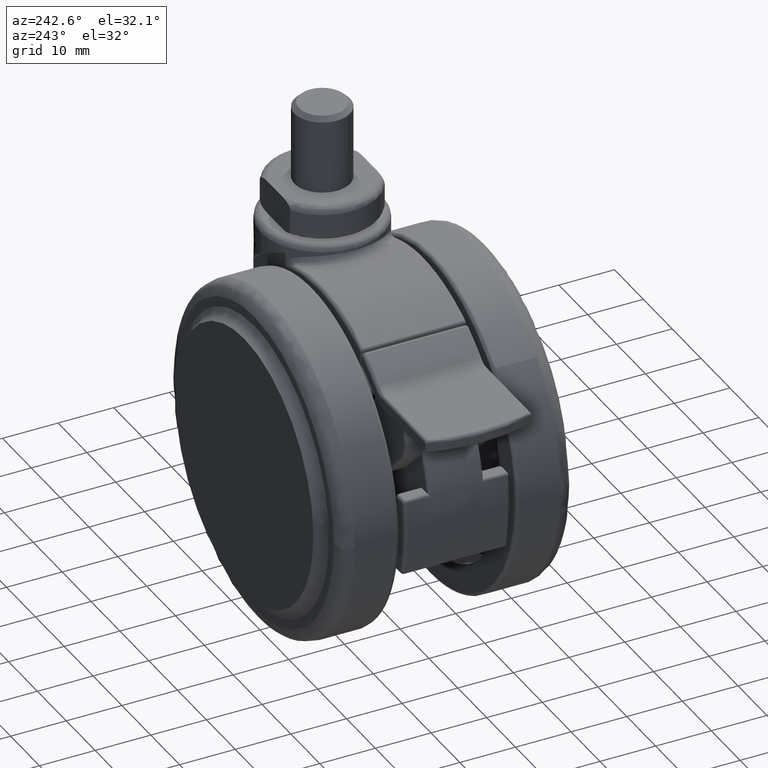
[diagram: clean part render]
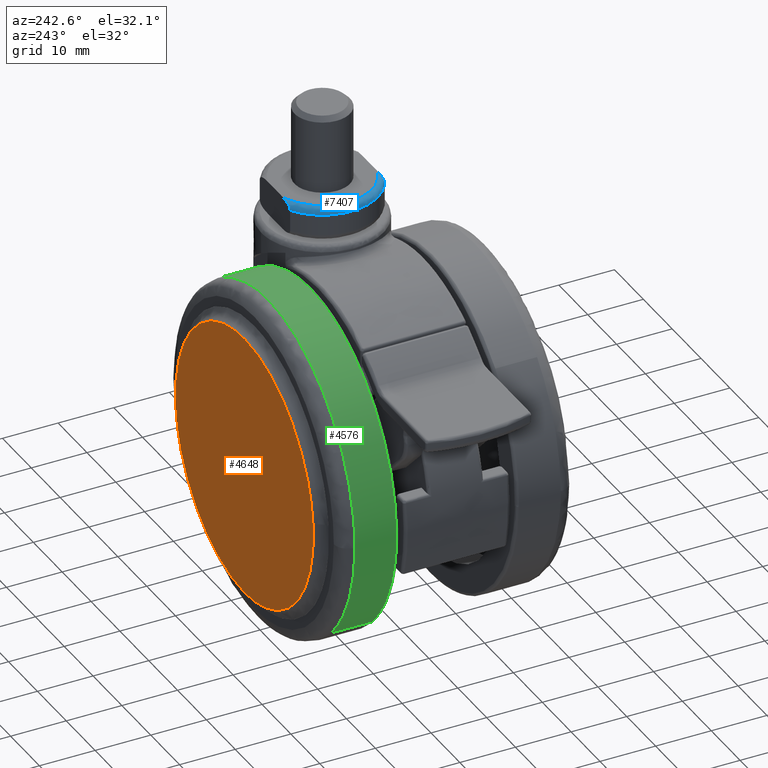
[diagram: same view with three faces highlighted in distinct colors, each labeled with its STEP entity id]
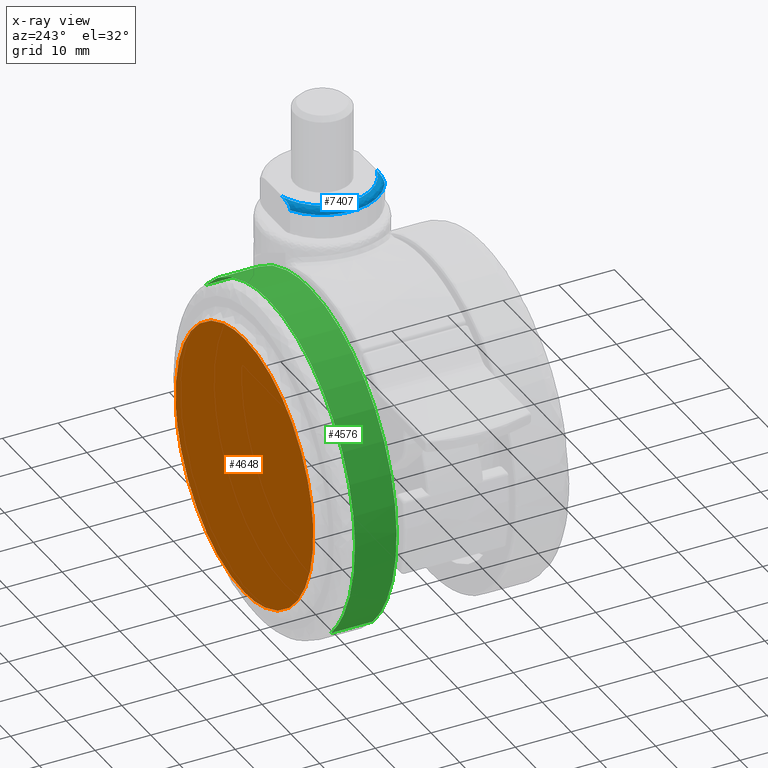
[diagram: x-ray of the same camera — body ghosted, the three highlighted faces saturated]
A machine part, auxiliary view with three faces highlighted in distinct colors.
The next image is the same camera in x-ray (body ghosted, the three faces saturated) — at least one of them is partly hidden behind the body in this view.
Their STEP definitions:

[orange] entity #4648 — the highlighted face is a freeform B-spline surface patch.
#4577=CARTESIAN_POINT('',(26.253983298255239,22.800000000000001,-26.260700038385689));
#4578=CARTESIAN_POINT('',(26.253983298255239,22.800000000000001,26.260701319169161));
#4579=CARTESIAN_POINT('',(-26.253983725177669,22.800000000000001,-26.260700038385689));
#4580=CARTESIAN_POINT('',(-26.253983725177669,22.800000000000001,26.260701319169161));
#4581=B_SPLINE_SURFACE_WITH_KNOTS('',1,1,((#4577,#4579),(#4578,#4580)),.UNSPECIFIED.,.F.,.F.,.U.,(2,2),(2,2),(0.0,52.521401357554851),(0.0,52.507967023432911),.UNSPECIFIED.);
#4582=CARTESIAN_POINT('',(23.783222111210389,22.799999999489390,-2.097494252924088));
#4583=VERTEX_POINT('',#4582);
#4584=CARTESIAN_POINT('',(2.792102E-015,22.800000000000001,23.875534258511259));
#4585=VERTEX_POINT('',#4584);
#4586=CARTESIAN_POINT('',(23.783222111210392,22.799999999489387,-2.097494252924089));
#4587=CARTESIAN_POINT('',(23.875534258569957,22.799999999499676,-1.050778486631238));
#4588=CARTESIAN_POINT('',(23.875534258568639,22.799999999510920,-5.057056E-012));
#4589=CARTESIAN_POINT('',(23.875534258538682,22.799999999766211,23.875534258508829));
#4590=CARTESIAN_POINT('',(2.792102E-015,22.800000000000001,23.875534258511259));
#4598=(BOUNDED_CURVE()B_SPLINE_CURVE(2,(#4586,#4587,#4588,#4589,#4590),.UNSPECIFIED.,.F.,.U.)B_SPLINE_CURVE_WITH_KNOTS((3,2,3),(0.734718454855897,0.750000000000000,1.0),.UNSPECIFIED.)CURVE()GEOMETRIC_REPRESENTATION_ITEM()RATIONAL_B_SPLINE_CURVE((0.966381850709618,0.982096556217202,1.0,0.707106781186547,1.0))REPRESENTATION_ITEM(''));
#4599=EDGE_CURVE('',#4583,#4585,#4598,.T.);
#4600=ORIENTED_EDGE('',*,*,#4599,.F.);
#4601=CARTESIAN_POINT('',(2.792102E-015,22.800000000000001,-23.875534258511252));
#4602=VERTEX_POINT('',#4601);
#4603=CARTESIAN_POINT('',(2.792102E-015,22.800000000000001,-23.875534258511252));
#4604=CARTESIAN_POINT('',(21.862569243453571,22.799999999744692,-23.875534258513881));
#4605=CARTESIAN_POINT('',(23.783222111210392,22.799999999489387,-2.097494252924089));
#4613=(BOUNDED_CURVE()B_SPLINE_CURVE(2,(#4603,#4604,#4605),.UNSPECIFIED.,.F.,.U.)B_SPLINE_CURVE_WITH_KNOTS((3,3),(0.500000000000000,0.734718454855897),.UNSPECIFIED.)CURVE()GEOMETRIC_REPRESENTATION_ITEM()RATIONAL_B_SPLINE_CURVE((1.0,0.725010224969346,0.966381850709618))REPRESENTATION_ITEM(''));
#4614=EDGE_CURVE('',#4602,#4583,#4613,.T.);
#4615=ORIENTED_EDGE('',*,*,#4614,.F.);
#4616=CARTESIAN_POINT('',(-23.783222111210382,22.799999999489401,2.097494252924087));
#4617=VERTEX_POINT('',#4616);
#4618=CARTESIAN_POINT('',(-23.783222111210382,22.799999999489398,2.097494252924088));
#4619=CARTESIAN_POINT('',(-23.875534258569946,22.799999999499686,1.050778486631239));
#4620=CARTESIAN_POINT('',(-23.875534258568631,22.799999999510920,5.060183E-012));
#4621=CARTESIAN_POINT('',(-23.875534258538682,22.799999999766225,-23.875534258508829));
#4622=CARTESIAN_POINT('',(2.792102E-015,22.800000000000001,-23.875534258511252));
#4630=(BOUNDED_CURVE()B_SPLINE_CURVE(2,(#4618,#4619,#4620,#4621,#4622),.UNSPECIFIED.,.F.,.U.)B_SPLINE_CURVE_WITH_KNOTS((3,2,3),(0.234718454855897,0.250000000000000,0.500000000000000),.UNSPECIFIED.)CURVE()GEOMETRIC_REPRESENTATION_ITEM()RATIONAL_B_SPLINE_CURVE((0.966381850709618,0.982096556217202,1.0,0.707106781186547,1.0))REPRESENTATION_ITEM(''));
#4631=EDGE_CURVE('',#4617,#4602,#4630,.T.);
#4632=ORIENTED_EDGE('',*,*,#4631,.F.);
#4633=CARTESIAN_POINT('',(2.792102E-015,22.800000000000001,23.875534258511259));
#4634=CARTESIAN_POINT('',(-21.862569243453560,22.799999999744696,23.875534258513884));
#4635=CARTESIAN_POINT('',(-23.783222111210382,22.799999999489398,2.097494252924088));
#4643=(BOUNDED_CURVE()B_SPLINE_CURVE(2,(#4633,#4634,#4635),.UNSPECIFIED.,.F.,.U.)B_SPLINE_CURVE_WITH_KNOTS((3,3),(0.0,0.234718454855897),.UNSPECIFIED.)CURVE()GEOMETRIC_REPRESENTATION_ITEM()RATIONAL_B_SPLINE_CURVE((1.0,0.725010224969346,0.966381850709618))REPRESENTATION_ITEM(''));
#4644=EDGE_CURVE('',#4585,#4617,#4643,.T.);
#4645=ORIENTED_EDGE('',*,*,#4644,.F.);
#4646=EDGE_LOOP('',(#4600,#4615,#4632,#4645));
#4647=FACE_OUTER_BOUND('',#4646,.T.);
#4648=ADVANCED_FACE('',(#4647),#4581,.F.);

[blue] entity #7407 — the highlighted face is a freeform B-spline surface patch.
#6953=CARTESIAN_POINT('',(11.732173123573560,8.500000000000000,37.400000000000013));
#6954=VERTEX_POINT('',#6953);
#6960=CARTESIAN_POINT('',(14.361818808345360,8.500000000000000,38.500000000000000));
#6961=VERTEX_POINT('',#6960);
#6962=CARTESIAN_POINT('',(14.361818808345360,8.500000000000000,38.500000000000000));
#6963=CARTESIAN_POINT('',(14.180705627136900,8.500000000000002,38.499999999985732));
#6964=CARTESIAN_POINT('',(13.999987454202630,8.499999999999998,38.496117348309532));
#6965=CARTESIAN_POINT('',(13.639834943331460,8.499999999999998,38.475732855913378));
#6966=CARTESIAN_POINT('',(13.460394029185711,8.500000000000000,38.459295654670299));
#6967=CARTESIAN_POINT('',(13.103486130387770,8.500000000000000,38.407018922843072));
#6968=CARTESIAN_POINT('',(12.925994609388191,8.500000000000000,38.371420567181502));
#6969=CARTESIAN_POINT('',(12.706162219471310,8.499999999999998,38.306949389908780));
#6970=CARTESIAN_POINT('',(12.662300186823289,8.500000000000000,38.293028530757077));
#6971=CARTESIAN_POINT('',(12.574822115581229,8.499999999999998,38.262768865071493));
#6972=CARTESIAN_POINT('',(12.531332009502091,8.499999999999998,38.246465471662127));
#6973=CARTESIAN_POINT('',(12.402925031862351,8.499999999999995,38.193956335203609));
#6974=CARTESIAN_POINT('',(12.319601713528080,8.499999999999996,38.154088392751078));
#6975=CARTESIAN_POINT('',(12.199376864950301,8.499999999999998,38.084141955876433));
#6976=CARTESIAN_POINT('',(12.160148380140949,8.499999999999998,38.059117707352982));
#6977=CARTESIAN_POINT('',(12.084946254120700,8.500000000000000,38.005860821964063));
#6978=CARTESIAN_POINT('',(12.048813441161769,8.499999999999998,37.977545807658082));
#6979=CARTESIAN_POINT('',(11.980056287637719,8.500000000000000,37.916885614065521));
#6980=CARTESIAN_POINT('',(11.947424541836250,8.499999999999998,37.884548941137453));
#6981=CARTESIAN_POINT('',(11.886564120158461,8.499999999999998,37.814817810516992));
#6982=CARTESIAN_POINT('',(11.858234525279780,8.499999999999998,37.777160591513884));
#6983=CARTESIAN_POINT('',(11.809296620395759,8.499999999999998,37.698384118300943));
#6984=CARTESIAN_POINT('',(11.788401054494530,8.500000000000000,37.657015034713403));
#6985=CARTESIAN_POINT('',(11.755366870145350,8.499999999999998,37.569422600380683));
#6986=CARTESIAN_POINT('',(11.743750110243351,8.499999999999998,37.524380629105188));
#6987=CARTESIAN_POINT('',(11.734413445527780,8.499999999999998,37.455865874881923));
#6988=CARTESIAN_POINT('',(11.732633876299451,8.499999999999998,37.432816167630463));
#6989=CARTESIAN_POINT('',(11.732198205700850,8.500000000000000,37.406368663249062));
#6990=CARTESIAN_POINT('',(11.732172444164240,8.500000000000000,37.403186374478082));
#6991=CARTESIAN_POINT('',(11.732173123573560,8.500000000000000,37.400000000000013));
#6992=B_SPLINE_CURVE_WITH_KNOTS('',3,(#6962,#6963,#6964,#6965,#6966,#6967,#6968,#6969,#6970,#6971,#6972,#6973,#6974,#6975,#6976,#6977,#6978,#6979,#6980,#6981,#6982,#6983,#6984,#6985,#6986,#6987,#6988,#6989,#6990,#6991),.UNSPECIFIED.,.F.,.U.,(4,2,2,2,2,2,2,2,2,2,2,2,2,2,4),(0.0,0.031250000000000,0.062500000000000,0.093750000000001,0.101562500000001,0.109375000000002,0.125000000000002,0.132812500000002,0.140625000000002,0.148437500000002,0.156250000000002,0.164062500000002,0.171875000000002,0.175781250000002,0.176314407642924),.UNSPECIFIED.);
#6993=EDGE_CURVE('',#6961,#6954,#6992,.T.);
#7171=CARTESIAN_POINT('',(14.361818808345721,-8.500000000000000,38.500000000000000));
#7172=VERTEX_POINT('',#7171);
#7178=CARTESIAN_POINT('',(11.732173123573560,-8.500000000000000,37.400000000000013));
#7179=VERTEX_POINT('',#7178);
#7180=CARTESIAN_POINT('',(11.732173123573560,-8.500000000000000,37.400000000000013));
#7181=CARTESIAN_POINT('',(11.732172488270839,-8.500000000000000,37.410532627479583));
#7182=CARTESIAN_POINT('',(11.732456352009690,-8.500000000000000,37.421051208579513));
#7183=CARTESIAN_POINT('',(11.735560858004391,-8.500000000000000,37.478146581404921));
#7184=CARTESIAN_POINT('',(11.743663911183299,-8.500000000000000,37.523953647868623));
#7185=CARTESIAN_POINT('',(11.763655289263230,-8.499999999999996,37.591468994513669));
#7186=CARTESIAN_POINT('',(11.771641910389411,-8.500000000000000,37.613746975414962));
#7187=CARTESIAN_POINT('',(11.789718039978011,-8.500000000000002,37.656933432088593));
#7188=CARTESIAN_POINT('',(11.799843767352931,-8.500000000000000,37.677977107869587));
#7189=CARTESIAN_POINT('',(11.833193779549809,-8.500000000000000,37.739606082652337));
#7190=CARTESIAN_POINT('',(11.859628387749940,-8.500000000000000,37.778963178361167));
#7191=CARTESIAN_POINT('',(11.917574268768210,-8.499999999999998,37.852151114619573));
#7192=CARTESIAN_POINT('',(11.949144893356570,-8.500000000000000,37.886212133546962));
#7193=CARTESIAN_POINT('',(12.016454562965150,-8.499999999999998,37.950269628954082));
#7194=CARTESIAN_POINT('',(12.052271649254850,-8.500000000000000,37.980310022340149));
#7195=CARTESIAN_POINT('',(12.127155473101739,-8.499999999999998,38.036717624212251));
#7196=CARTESIAN_POINT('',(12.165745790160910,-8.500000000000000,38.062742935964451));
#7197=CARTESIAN_POINT('',(12.284284924468800,-8.500000000000002,38.135567713053263));
#7198=CARTESIAN_POINT('',(12.366969295327090,-8.500000000000000,38.177177917418319));
#7199=CARTESIAN_POINT('',(12.537613721165521,-8.500000000000000,38.250390515804149));
#7200=CARTESIAN_POINT('',(12.625868207513630,-8.500000000000002,38.281983120571446));
#7201=CARTESIAN_POINT('',(12.891775912654140,-8.500000000000000,38.363515575781761));
#7202=CARTESIAN_POINT('',(13.072249236348069,-8.499999999999998,38.401310932275237));
#7203=CARTESIAN_POINT('',(13.345865888095091,-8.500000000000000,38.442969462979804));
#7204=CARTESIAN_POINT('',(13.437572104229771,-8.500000000000000,38.454265986397438));
#7205=CARTESIAN_POINT('',(13.621793778241130,-8.500000000000004,38.472673293497436));
#7206=CARTESIAN_POINT('',(13.714421266207230,-8.500000000000000,38.479784587442602));
#7207=CARTESIAN_POINT('',(13.991996857293120,-8.500000000000000,38.495971545967421));
#7208=CARTESIAN_POINT('',(14.176939827584400,-8.500000000000000,38.499999999981547));
#7209=CARTESIAN_POINT('',(14.361818808345721,-8.500000000000000,38.500000000000000));
#7210=B_SPLINE_CURVE_WITH_KNOTS('',3,(#7180,#7181,#7182,#7183,#7184,#7185,#7186,#7187,#7188,#7189,#7190,#7191,#7192,#7193,#7194,#7195,#7196,#7197,#7198,#7199,#7200,#7201,#7202,#7203,#7204,#7205,#7206,#7207,#7208,#7209),.UNSPECIFIED.,.F.,.U.,(4,2,2,2,2,2,2,2,2,2,2,2,2,2,4),(0.826376939406648,0.828124999999982,0.835937499999982,0.839843749999982,0.843749999999982,0.851562499999983,0.859374999999984,0.867187499999985,0.874999999999986,0.890624999999988,0.906249999999989,0.937499999999993,0.953124999999995,0.968749999999996,1.0),.UNSPECIFIED.);
#7211=EDGE_CURVE('',#7179,#7172,#7210,.T.);
#7283=CARTESIAN_POINT('',(14.361818808345721,-8.500000000000000,38.500000000000000));
#7284=CARTESIAN_POINT('',(13.715287075608311,-8.299460922832015,38.500000000000028));
#7285=CARTESIAN_POINT('',(12.495486659631361,-7.761783866358752,38.499999999999957));
#7286=CARTESIAN_POINT('',(11.068749699742160,-6.703442541975331,38.500000000000149));
#7287=CARTESIAN_POINT('',(10.084129950972420,-5.644237719278022,38.499999999999773));
#7288=CARTESIAN_POINT('',(9.369576332901884,-4.632879768659025,38.499999999999993));
#7289=CARTESIAN_POINT('',(8.782255705400885,-3.507911374300521,38.500000000000263));
#7290=CARTESIAN_POINT('',(8.259921122948404,-1.970331973588849,38.500000000000618));
#7291=CARTESIAN_POINT('',(8.057914722114941,-0.412486030270529,38.499999999998487));
#7292=CARTESIAN_POINT('',(8.136871512933954,1.030511011006077,38.499999999999993));
#7293=CARTESIAN_POINT('',(8.356781827855771,2.249126901079268,38.500000000001300));
#7294=CARTESIAN_POINT('',(8.731140593302534,3.369700863546100,38.499999999996753));
#7295=CARTESIAN_POINT('',(9.282229295433719,4.478235882799178,38.500000000004313));
#7296=CARTESIAN_POINT('',(10.064471508979899,5.658730960454690,38.499999999996703));
#7297=CARTESIAN_POINT('',(11.053154176184540,6.680647604364148,38.500000000001229));
#7298=CARTESIAN_POINT('',(12.526321574908851,7.762108241382680,38.499999999999673));
#7299=CARTESIAN_POINT('',(13.574632282475131,8.256044428192826,38.500000000000533));
#7300=CARTESIAN_POINT('',(14.361818808345360,8.500000000000000,38.500000000000000));
#7301=B_SPLINE_CURVE_WITH_KNOTS('',3,(#7283,#7284,#7285,#7286,#7287,#7288,#7289,#7290,#7291,#7292,#7293,#7294,#7295,#7296,#7297,#7298,#7299,#7300),.UNSPECIFIED.,.F.,.U.,(4,1,1,1,1,1,1,1,1,1,1,1,1,1,1,4),(0.000000123495532,2.030736821722449,3.973250387094815,5.297675313116248,6.357213347587294,7.681651169808898,9.094362491386947,11.213439338599059,12.361197991742930,13.420771883745690,14.921774873230820,15.893018215774520,17.129149206461850,19.159924490909130,20.131195404345501,22.603409302364732),.UNSPECIFIED.);
#7302=EDGE_CURVE('',#7172,#6961,#7301,.T.);
#7361=CARTESIAN_POINT('',(15.412378667501345,-8.679293734191454,38.497322931977415));
#7362=CARTESIAN_POINT('',(8.176696694560462,-7.355738683834930,38.497322931977429));
#7363=CARTESIAN_POINT('',(8.176696694560462,2.896196E-014,38.497322931977415));
#7364=CARTESIAN_POINT('',(8.176696694560459,7.355738531814065,38.497322931977408));
#7365=CARTESIAN_POINT('',(15.412378491054209,8.679293701915695,38.497322931977401));
#7366=CARTESIAN_POINT('',(15.185342771355709,-9.920465788583126,38.585513269115161));
#7367=CARTESIAN_POINT('',(6.914930723097648,-8.407637325981096,38.585513269115161));
#7368=CARTESIAN_POINT('',(6.914930723097646,2.903922E-014,38.585513269115154));
#7369=CARTESIAN_POINT('',(6.914930723097642,8.407637152220660,38.585513269115140));
#7370=CARTESIAN_POINT('',(15.185342569675953,9.920465751691806,38.585513269115147));
#7371=CARTESIAN_POINT('',(15.201126256860990,-9.834179780675898,37.323714351406515));
#7372=CARTESIAN_POINT('',(7.002648415584750,-8.334509564013946,37.323714351406508));
#7373=CARTESIAN_POINT('',(7.002648415584750,2.903385E-014,37.323714351406522));
#7374=CARTESIAN_POINT('',(7.002648415584747,8.334509391764843,37.323714351406508));
#7375=CARTESIAN_POINT('',(15.201126056935404,9.834179744105450,37.323714351406522));
#7383=(BOUNDED_SURFACE()B_SPLINE_SURFACE(2,2,((#7361,#7366,#7371),(#7362,#7367,#7372),(#7363,#7368,#7373),(#7364,#7369,#7374),(#7365,#7370,#7375)),.UNSPECIFIED.,.F.,.F.,.U.)B_SPLINE_SURFACE_WITH_KNOTS((3,2,3),(3,3),(0.0,14.482072543577450,28.964144860042630),(0.0,2.004607489314867),.UNSPECIFIED.)GEOMETRIC_REPRESENTATION_ITEM()RATIONAL_B_SPLINE_SURFACE(((0.891854389571714,0.586884576172750,0.896821997250981),(0.693408625558521,0.456297386752638,0.697270895065148),(0.913811094967896,0.601333181114613,0.918901000972554),(0.693408629014940,0.456297389027133,0.697270898540819),(0.891854383347541,0.586884572076934,0.896821990992139)))REPRESENTATION_ITEM('')SURFACE());
#7384=ORIENTED_EDGE('',*,*,#7302,.T.);
#7385=ORIENTED_EDGE('',*,*,#6993,.T.);
#7386=CARTESIAN_POINT('',(11.732173123573560,-8.500000000000000,37.400000000000013));
#7387=CARTESIAN_POINT('',(11.169903116212749,-8.151620594801800,37.399999999999878));
#7388=CARTESIAN_POINT('',(10.093758224199121,-7.326581359824849,37.400000000000183));
#7389=CARTESIAN_POINT('',(8.839094798048851,-5.879685566922861,37.399999999999977));
#7390=CARTESIAN_POINT('',(7.876266501462796,-4.228230049715981,37.400000000000027));
#7391=CARTESIAN_POINT('',(7.345343497896561,-2.752094588197134,37.400000000000013));
#7392=CARTESIAN_POINT('',(7.053587927980826,-1.270439996420073,37.400000000000013));
#7393=CARTESIAN_POINT('',(6.958747507916602,0.132595860984629,37.399999999999871));
#7394=CARTESIAN_POINT('',(7.118396637109009,1.877621287959161,37.400000000000638));
#7395=CARTESIAN_POINT('',(7.585271938759211,3.514691609679263,37.399999999999388));
#7396=CARTESIAN_POINT('',(8.240750017252058,4.876737552067809,37.399999999998727));
#7397=CARTESIAN_POINT('',(9.043326909596722,6.124922228377542,37.400000000002230));
#7398=CARTESIAN_POINT('',(10.155716085678870,7.377281531098438,37.399999999998791));
#7399=CARTESIAN_POINT('',(11.192396783449951,8.165553078359222,37.400000000000247));
#7400=CARTESIAN_POINT('',(11.732173123573560,8.500000000000000,37.400000000000013));
#7401=B_SPLINE_CURVE_WITH_KNOTS('',3,(#7386,#7387,#7388,#7389,#7390,#7391,#7392,#7393,#7394,#7395,#7396,#7397,#7398,#7399,#7400),.UNSPECIFIED.,.F.,.U.,(4,1,1,1,1,1,1,1,1,1,1,1,4),(0.000000102846510,1.984347365809363,4.048067634621859,5.714937997953255,7.699307923827629,8.731156478660621,10.239214342568870,11.906078152065360,13.969833119093430,15.319194843351861,16.430439936848579,18.414788165063140,20.319759216062231),.UNSPECIFIED.);
#7402=EDGE_CURVE('',#7179,#6954,#7401,.T.);
#7403=ORIENTED_EDGE('',*,*,#7402,.F.);
#7404=ORIENTED_EDGE('',*,*,#7211,.T.);
#7405=EDGE_LOOP('',(#7384,#7385,#7403,#7404));
#7406=FACE_OUTER_BOUND('',#7405,.T.);
#7407=ADVANCED_FACE('',(#7406),#7383,.T.);

[green] entity #4576 — the highlighted face is a freeform B-spline surface patch.
#4267=CARTESIAN_POINT('',(-29.990525678498560,10.999999999857030,0.753902863317289));
#4268=VERTEX_POINT('',#4267);
#4282=CARTESIAN_POINT('',(-21.761231919898879,10.999999999927139,-20.650636438821259));
#4283=VERTEX_POINT('',#4282);
#4284=CARTESIAN_POINT('',(-29.990525678498564,10.999999999857028,0.753902863317289));
#4285=CARTESIAN_POINT('',(-29.999999999999996,10.999999999857911,0.377010963709972));
#4286=CARTESIAN_POINT('',(-30.0,10.999999999858810,-2.631466E-015));
#4287=CARTESIAN_POINT('',(-29.999999999999996,10.999999999887326,-11.968785714438784));
#4288=CARTESIAN_POINT('',(-21.761231919898893,10.999999999927157,-20.650636438821273));
#4296=(BOUNDED_CURVE()B_SPLINE_CURVE(2,(#4284,#4285,#4286,#4287,#4288),.UNSPECIFIED.,.F.,.U.)B_SPLINE_CURVE_WITH_KNOTS((3,2,3),(0.245579891769707,0.250000000000000,0.371049520889213),.UNSPECIFIED.)CURVE()GEOMETRIC_REPRESENTATION_ITEM()RATIONAL_B_SPLINE_CURVE((0.989826157681350,0.994821521091703,1.0,0.858181664763729,0.853699661796709))REPRESENTATION_ITEM(''));
#4297=EDGE_CURVE('',#4268,#4283,#4296,.T.);
#4378=CARTESIAN_POINT('',(21.761231919898879,10.999999999927130,20.650636438821259));
#4379=VERTEX_POINT('',#4378);
#4395=CARTESIAN_POINT('',(1.347067E-015,11.0,30.0));
#4396=VERTEX_POINT('',#4395);
#4397=CARTESIAN_POINT('',(21.761231919898893,10.999999999927150,20.650636438821273));
#4398=CARTESIAN_POINT('',(12.889017858354073,10.999999999970047,30.000000000000004));
#4399=CARTESIAN_POINT('',(1.347067E-015,11.0,30.0));
#4407=(BOUNDED_CURVE()B_SPLINE_CURVE(2,(#4397,#4398,#4399),.UNSPECIFIED.,.F.,.U.)B_SPLINE_CURVE_WITH_KNOTS((3,3),(0.871049520889213,1.0),.UNSPECIFIED.)CURVE()GEOMETRIC_REPRESENTATION_ITEM()RATIONAL_B_SPLINE_CURVE((0.853699661796709,0.848925116422819,1.0))REPRESENTATION_ITEM(''));
#4408=EDGE_CURVE('',#4379,#4396,#4407,.T.);
#4410=CARTESIAN_POINT('',(1.347067E-015,11.0,30.0));
#4411=CARTESIAN_POINT('',(-29.255336285402727,10.999999999928518,30.0));
#4412=CARTESIAN_POINT('',(-29.990525678498564,10.999999999857028,0.753902863317289));
#4420=(BOUNDED_CURVE()B_SPLINE_CURVE(2,(#4410,#4411,#4412),.UNSPECIFIED.,.F.,.U.)B_SPLINE_CURVE_WITH_KNOTS((3,3),(0.0,0.245579891769707),.UNSPECIFIED.)CURVE()GEOMETRIC_REPRESENTATION_ITEM()RATIONAL_B_SPLINE_CURVE((1.0,0.712285260094844,0.989826157681350))REPRESENTATION_ITEM(''));
#4421=EDGE_CURVE('',#4396,#4268,#4420,.T.);
#4446=CARTESIAN_POINT('',(-21.761231910157260,18.500000000139579,-20.650636449086779));
#4447=VERTEX_POINT('',#4446);
#4448=CARTESIAN_POINT('',(-21.761231910157260,18.500000000139579,-20.650636449086779));
#4449=CARTESIAN_POINT('',(-21.761231919898879,10.999999999927139,-20.650636438821259));
#4450=QUASI_UNIFORM_CURVE('',1,(#4448,#4449),.UNSPECIFIED.,.F.,.U.);
#4451=EDGE_CURVE('',#4447,#4283,#4450,.T.);
#4483=CARTESIAN_POINT('',(21.761231910157271,18.500000000139561,20.650636449086779));
#4484=VERTEX_POINT('',#4483);
#4498=CARTESIAN_POINT('',(21.761231910157271,18.500000000139561,20.650636449086779));
#4499=CARTESIAN_POINT('',(21.761231919898879,10.999999999927130,20.650636438821259));
#4500=QUASI_UNIFORM_CURVE('',1,(#4498,#4499),.UNSPECIFIED.,.F.,.U.);
#4501=EDGE_CURVE('',#4484,#4379,#4500,.T.);
#4508=CARTESIAN_POINT('',(21.761231130368628,18.687500000279481,20.650637270812609));
#4509=CARTESIAN_POINT('',(1.110593859556011,18.687500000279481,42.411868401181231));
#4510=CARTESIAN_POINT('',(-20.650637270812609,18.687500000279488,21.761231130368621));
#4511=CARTESIAN_POINT('',(-42.411868401181231,18.687500000279492,1.110593859556008));
#4512=CARTESIAN_POINT('',(-21.761231130368621,18.687500000279488,-20.650637270812609));
#4513=CARTESIAN_POINT('',(21.761231130368621,10.807812499846460,20.650637270812609));
#4514=CARTESIAN_POINT('',(1.110593859556010,10.807812499846467,42.411868401181231));
#4515=CARTESIAN_POINT('',(-20.650637270812609,10.807812499846470,21.761231130368621));
#4516=CARTESIAN_POINT('',(-42.411868401181231,10.807812499846472,1.110593859556008));
#4517=CARTESIAN_POINT('',(-21.761231130368621,10.807812499846470,-20.650637270812609));
#4525=(BOUNDED_SURFACE()B_SPLINE_SURFACE(2,1,((#4508,#4513),(#4509,#4514),(#4510,#4515),(#4511,#4516),(#4512,#4517)),.UNSPECIFIED.,.F.,.F.,.U.)B_SPLINE_SURFACE_WITH_KNOTS((3,2,3),(2,2),(0.0,49.705627484771391,99.411254969542782),(0.0,7.879687500433019),.UNSPECIFIED.)GEOMETRIC_REPRESENTATION_ITEM()RATIONAL_B_SPLINE_SURFACE(((1.0,1.0),(0.707106781186548,0.707106781186548),(1.0,1.0),(0.707106781186548,0.707106781186548),(1.0,1.0)))REPRESENTATION_ITEM('')SURFACE());
#4526=ORIENTED_EDGE('',*,*,#4297,.F.);
#4527=ORIENTED_EDGE('',*,*,#4421,.F.);
#4528=ORIENTED_EDGE('',*,*,#4408,.F.);
#4529=ORIENTED_EDGE('',*,*,#4501,.F.);
#4530=CARTESIAN_POINT('',(2.265522E-015,18.500000000000000,30.0));
#4531=VERTEX_POINT('',#4530);
#4532=CARTESIAN_POINT('',(21.761231910157274,18.500000000139565,20.650636449086807));
#4533=CARTESIAN_POINT('',(12.889017849971918,18.500000000057828,30.0));
#4534=CARTESIAN_POINT('',(2.265522E-015,18.500000000000000,30.0));
#4542=(BOUNDED_CURVE()B_SPLINE_CURVE(2,(#4532,#4533,#4534),.UNSPECIFIED.,.F.,.U.)B_SPLINE_CURVE_WITH_KNOTS((3,3),(0.871049520960404,1.0),.UNSPECIFIED.)CURVE()GEOMETRIC_REPRESENTATION_ITEM()RATIONAL_B_SPLINE_CURVE((0.853699661791437,0.848925116506225,1.0))REPRESENTATION_ITEM(''));
#4543=EDGE_CURVE('',#4484,#4531,#4542,.T.);
#4544=ORIENTED_EDGE('',*,*,#4543,.T.);
#4545=CARTESIAN_POINT('',(-29.999999999999989,18.500000000269189,5.284502E-015));
#4546=VERTEX_POINT('',#4545);
#4547=CARTESIAN_POINT('',(2.265522E-015,18.500000000000000,30.0));
#4548=CARTESIAN_POINT('',(-29.999999999999993,18.500000000134595,29.999999999999993));
#4549=CARTESIAN_POINT('',(-29.999999999999989,18.500000000269189,5.284502E-015));
#4557=(BOUNDED_CURVE()B_SPLINE_CURVE(2,(#4547,#4548,#4549),.UNSPECIFIED.,.F.,.U.)B_SPLINE_CURVE_WITH_KNOTS((3,3),(0.0,0.250000000000000),.UNSPECIFIED.)CURVE()GEOMETRIC_REPRESENTATION_ITEM()RATIONAL_B_SPLINE_CURVE((1.0,0.707106781186547,1.0))REPRESENTATION_ITEM(''));
#4558=EDGE_CURVE('',#4531,#4546,#4557,.T.);
#4559=ORIENTED_EDGE('',*,*,#4558,.T.);
#4560=CARTESIAN_POINT('',(-29.999999999999989,18.500000000269189,5.284502E-015));
#4561=CARTESIAN_POINT('',(-30.0,18.500000000215490,-11.968785722641067));
#4562=CARTESIAN_POINT('',(-21.761231910157278,18.500000000139583,-20.650636449086800));
#4570=(BOUNDED_CURVE()B_SPLINE_CURVE(2,(#4560,#4561,#4562),.UNSPECIFIED.,.F.,.U.)B_SPLINE_CURVE_WITH_KNOTS((3,3),(0.250000000000000,0.371049520960404),.UNSPECIFIED.)CURVE()GEOMETRIC_REPRESENTATION_ITEM()RATIONAL_B_SPLINE_CURVE((1.0,0.858181664680323,0.853699661791437))REPRESENTATION_ITEM(''));
#4571=EDGE_CURVE('',#4546,#4447,#4570,.T.);
#4572=ORIENTED_EDGE('',*,*,#4571,.T.);
#4573=ORIENTED_EDGE('',*,*,#4451,.T.);
#4574=EDGE_LOOP('',(#4526,#4527,#4528,#4529,#4544,#4559,#4572,#4573));
#4575=FACE_OUTER_BOUND('',#4574,.T.);
#4576=ADVANCED_FACE('',(#4575),#4525,.T.);